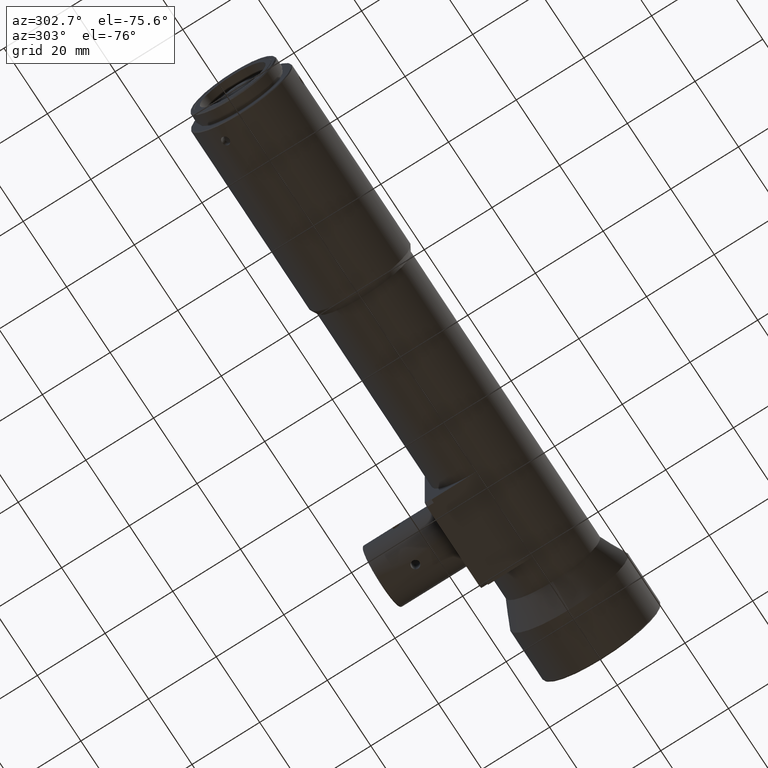
[diagram: clean part render]
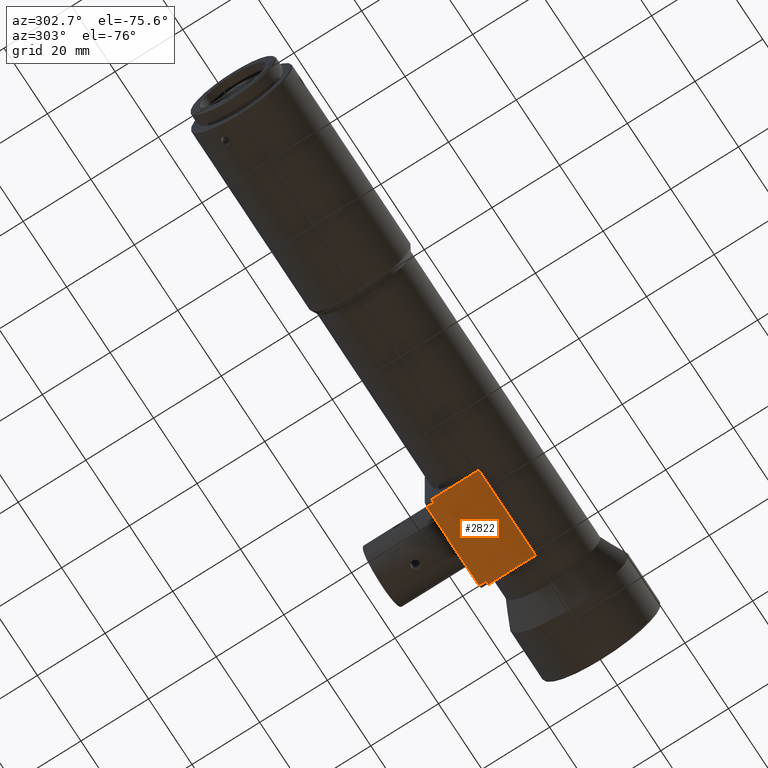
[diagram: same view with one face highlighted and labeled with its STEP entity id]
A machine part, auxiliary view. The second image highlights one B-rep face of the part: STEP entity #2822.
In plain terms, the highlighted planar face has unit normal (0, -0, 1).
Its self-contained STEP definition (entity closure, byte-faithful):
#30 = EDGE_CURVE ( 'NONE', #4092, #3899, #1009, .T. ) ;
#32 = EDGE_CURVE ( 'NONE', #147, #3899, #989, .T. ) ;
#47 = EDGE_CURVE ( 'NONE', #4089, #174, #959, .T. ) ;
#49 = EDGE_CURVE ( 'NONE', #174, #4092, #922, .T. ) ;
#53 = EDGE_CURVE ( 'NONE', #3913, #3954, #926, .T. ) ;
#54 = EDGE_CURVE ( 'NONE', #3954, #147, #920, .T. ) ;
#109 = FACE_OUTER_BOUND ( 'NONE', #1338, .T. ) ;
#147 = VERTEX_POINT ( 'NONE', #1956 ) ;
#174 = VERTEX_POINT ( 'NONE', #2012 ) ;
#500 = EDGE_CURVE ( 'NONE', #4089, #4122, #991, .T. ) ;
#510 = EDGE_CURVE ( 'NONE', #4122, #3913, #1103, .T. ) ;
#642 = AXIS2_PLACEMENT_3D ( 'NONE', #3651, #3662, #3661 ) ;
#920 = LINE ( 'NONE', #1953, #946 ) ;
#921 = VECTOR ( 'NONE', #2133, 1000.000000000000000 ) ;
#922 = LINE ( 'NONE', #2268, #948 ) ;
#925 = VECTOR ( 'NONE', #1901, 1000.000000000000000 ) ;
#926 = LINE ( 'NONE', #1996, #921 ) ;
#944 = VECTOR ( 'NONE', #2729, 1000.000000000000000 ) ;
#946 = VECTOR ( 'NONE', #1997, 1000.000000000000000 ) ;
#948 = VECTOR ( 'NONE', #2040, 1000.000000000000000 ) ;
#959 = LINE ( 'NONE', #2130, #925 ) ;
#966 = VECTOR ( 'NONE', #2147, 1000.000000000000000 ) ;
#968 = VECTOR ( 'NONE', #2153, 1000.000000000000000 ) ;
#989 = LINE ( 'NONE', #2280, #966 ) ;
#991 = LINE ( 'NONE', #2736, #944 ) ;
#1009 = LINE ( 'NONE', #2073, #968 ) ;
#1103 = LINE ( 'NONE', #2737, #1110 ) ;
#1110 = VECTOR ( 'NONE', #2722, 1000.000000000000000 ) ;
#1338 = EDGE_LOOP ( 'NONE', ( #1792, #1846, #1663, #1742, #1810, #1776, #1696, #1809 ) ) ;
#1663 = ORIENTED_EDGE ( 'NONE', *, *, #500, .T. ) ;
#1696 = ORIENTED_EDGE ( 'NONE', *, *, #32, .T. ) ;
#1742 = ORIENTED_EDGE ( 'NONE', *, *, #510, .T. ) ;
#1776 = ORIENTED_EDGE ( 'NONE', *, *, #54, .T. ) ;
#1792 = ORIENTED_EDGE ( 'NONE', *, *, #49, .F. ) ;
#1809 = ORIENTED_EDGE ( 'NONE', *, *, #30, .F. ) ;
#1810 = ORIENTED_EDGE ( 'NONE', *, *, #53, .T. ) ;
#1846 = ORIENTED_EDGE ( 'NONE', *, *, #47, .F. ) ;
#1901 = DIRECTION ( 'NONE',  ( 0.0000000000000000000, -1.000000000000000000, -0.0000000000000000000 ) ) ;
#1953 = CARTESIAN_POINT ( 'NONE',  ( 1.300000000000000700, 15.00000000000000000, -14.00000000000000000 ) ) ;
#1956 = CARTESIAN_POINT ( 'NONE',  ( 1.300000000000000700, 14.00000000000000000, -14.00000000000000000 ) ) ;
#1996 = CARTESIAN_POINT ( 'NONE',  ( -10.69999999999999900, 16.00000000000000000, -14.00000000000000000 ) ) ;
#1997 = DIRECTION ( 'NONE',  ( 0.0000000000000000000, -1.000000000000000000, -0.0000000000000000000 ) ) ;
#2012 = CARTESIAN_POINT ( 'NONE',  ( -23.69999999999999900, -2.871447999214636500E-009, -14.00000000000000000 ) ) ;
#2040 = DIRECTION ( 'NONE',  ( 1.000000000000000000, -0.0000000000000000000, -0.0000000000000000000 ) ) ;
#2073 = CARTESIAN_POINT ( 'NONE',  ( 2.300000000000001600, 7.000000000000000000, -14.00000000000000000 ) ) ;
#2130 = CARTESIAN_POINT ( 'NONE',  ( -23.69999999999999900, 7.000000000000000000, -14.00000000000000000 ) ) ;
#2133 = DIRECTION ( 'NONE',  ( 1.000000000000000000, -0.0000000000000000000, -0.0000000000000000000 ) ) ;
#2147 = DIRECTION ( 'NONE',  ( 1.000000000000000000, 0.0000000000000000000, 0.0000000000000000000 ) ) ;
#2153 = DIRECTION ( 'NONE',  ( 0.0000000000000000000, 1.000000000000000000, 0.0000000000000000000 ) ) ;
#2268 = CARTESIAN_POINT ( 'NONE',  ( -10.69999999999999900, 0.0000000000000000000, -14.00000000000000000 ) ) ;
#2280 = CARTESIAN_POINT ( 'NONE',  ( -10.69999999999999900, 14.00000000000000000, -14.00000000000000000 ) ) ;
#2722 = DIRECTION ( 'NONE',  ( 0.0000000000000000000, 1.000000000000000000, 0.0000000000000000000 ) ) ;
#2729 = DIRECTION ( 'NONE',  ( 1.000000000000000000, 0.0000000000000000000, 0.0000000000000000000 ) ) ;
#2736 = CARTESIAN_POINT ( 'NONE',  ( -10.69999999999999900, 14.00000000000000000, -14.00000000000000000 ) ) ;
#2737 = CARTESIAN_POINT ( 'NONE',  ( -22.69999999999999900, 15.00000000000000000, -14.00000000000000000 ) ) ;
#2822 = ADVANCED_FACE ( 'NONE', ( #109 ), #3665, .F. ) ;
#3002 = CARTESIAN_POINT ( 'NONE',  ( 2.300000000000003400, 14.00000000000000000, -14.00000000000000000 ) ) ;
#3181 = CARTESIAN_POINT ( 'NONE',  ( -22.69999999999999900, 14.00000000000000000, -14.00000000000000000 ) ) ;
#3184 = CARTESIAN_POINT ( 'NONE',  ( 2.299999997000000500, -2.871447999214636500E-009, -14.00000000000000000 ) ) ;
#3191 = CARTESIAN_POINT ( 'NONE',  ( 1.300000003000000300, 16.00000000000000000, -14.00000000000000000 ) ) ;
#3249 = CARTESIAN_POINT ( 'NONE',  ( -22.70000000300000000, 16.00000000000000000, -14.00000000000000000 ) ) ;
#3278 = CARTESIAN_POINT ( 'NONE',  ( -23.70000000000000300, 14.00000000000000000, -14.00000000000000000 ) ) ;
#3651 = CARTESIAN_POINT ( 'NONE',  ( 2.300000000000001600, 0.0000000000000000000, -14.00000000000000000 ) ) ;
#3661 = DIRECTION ( 'NONE',  ( 0.0000000000000000000, 1.000000000000000000, 0.0000000000000000000 ) ) ;
#3662 = DIRECTION ( 'NONE',  ( 0.0000000000000000000, -0.0000000000000000000, 1.000000000000000000 ) ) ;
#3665 = PLANE ( 'NONE',  #642 ) ;
#3899 = VERTEX_POINT ( 'NONE', #3002 ) ;
#3913 = VERTEX_POINT ( 'NONE', #3249 ) ;
#3954 = VERTEX_POINT ( 'NONE', #3191 ) ;
#4089 = VERTEX_POINT ( 'NONE', #3278 ) ;
#4092 = VERTEX_POINT ( 'NONE', #3184 ) ;
#4122 = VERTEX_POINT ( 'NONE', #3181 ) ;